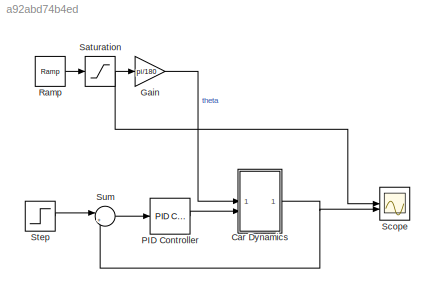
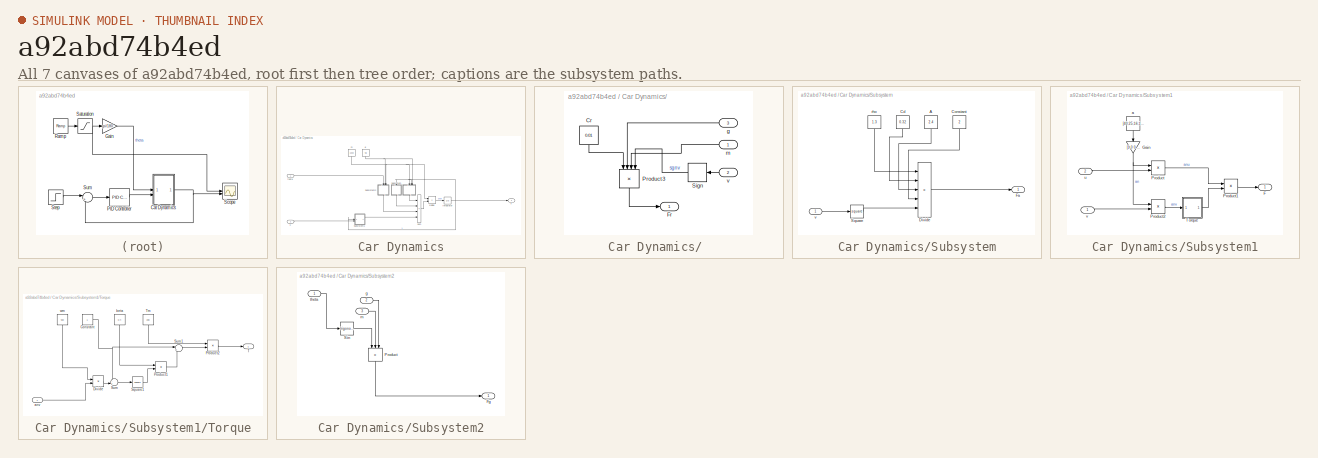
[diagram: thumbnail index - all 7 canvases of the model, root first then tree order]
MODEL slx_a92abd74b4ed
KIND model
CONFIG AbsTol = auto
CONFIG EnableMultiTasking = off
CONFIG FixedStep = auto
CONFIG MaxStep = auto
CONFIG MinStep = auto
CONFIG RelTol = 1e-3
CONFIG SampleTimeConstraint = Unconstrained
CONFIG SolverName = VariableStepAuto
CONFIG StartTime = 0.0
CONFIG StopTime = 10
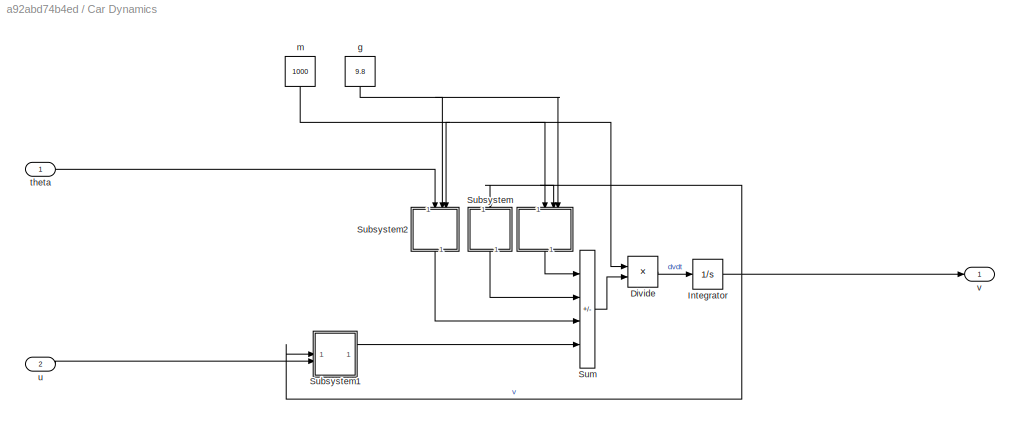
BLOCK [SubSystem] Car Dynamics
BLOCK [SubSystem] Car Dynamics/ 
  NameLocation = left
BLOCK [Constant] Car Dynamics/ /Cr
  NameLocation = left
  Value = 0.01
BLOCK [Outport] Car Dynamics/ /Fr
BLOCK [Product] Car Dynamics/ /Product3
  Inputs = 4
  NameLocation = left
BLOCK [Signum] Car Dynamics/ /Sign
  NameLocation = top
BLOCK [Inport] Car Dynamics/ /g
  NameLocation = top
  Port = 3
BLOCK [Inport] Car Dynamics/ /m
BLOCK [Inport] Car Dynamics/ /v
  Port = 2
BLOCK [Product] Car Dynamics/Divide
  Inputs = /*
BLOCK [Integrator] Car Dynamics/Integrator
BLOCK [SubSystem] Car Dynamics/Subsystem
  NameLocation = left
BLOCK [Constant] Car Dynamics/Subsystem/A
  NameLocation = left
  Value = 2.4
BLOCK [Constant] Car Dynamics/Subsystem/Cd
  NameLocation = left
  Value = 0.32
BLOCK [Constant] Car Dynamics/Subsystem/Constant
  NameLocation = left
  Value = 2
BLOCK [Product] Car Dynamics/Subsystem/Divide
  Inputs = ***/*
BLOCK [Outport] Car Dynamics/Subsystem/Fa
BLOCK [Math] Car Dynamics/Subsystem/Square
  Operator = square
BLOCK [Constant] Car Dynamics/Subsystem/rho
  NameLocation = left
  Value = 1.3
BLOCK [Inport] Car Dynamics/Subsystem/v
BLOCK [SubSystem] Car Dynamics/Subsystem1
BLOCK [Outport] Car Dynamics/Subsystem1/F
BLOCK [Gain] Car Dynamics/Subsystem1/Gain
  Gain = [1 0 0 0 0]
  Multiplication = Matrix(K*u)
  NameLocation = left
BLOCK [Product] Car Dynamics/Subsystem1/Product
BLOCK [Product] Car Dynamics/Subsystem1/Product1
BLOCK [Product] Car Dynamics/Subsystem1/Product2
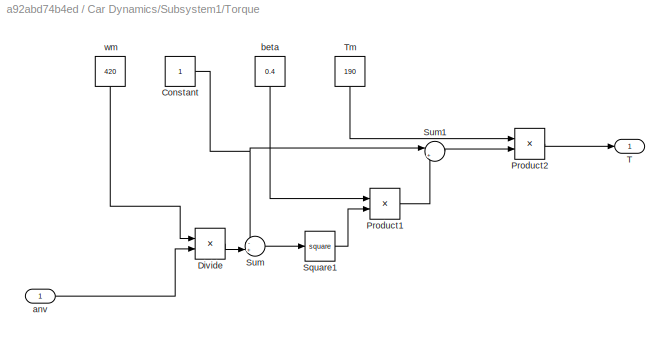
BLOCK [SubSystem] Car Dynamics/Subsystem1/Torque
BLOCK [Constant] Car Dynamics/Subsystem1/Torque/Constant
BLOCK [Product] Car Dynamics/Subsystem1/Torque/Divide
  Inputs = /*
BLOCK [Product] Car Dynamics/Subsystem1/Torque/Product1
BLOCK [Product] Car Dynamics/Subsystem1/Torque/Product2
BLOCK [Math] Car Dynamics/Subsystem1/Torque/Square1
  Operator = square
BLOCK [Sum] Car Dynamics/Subsystem1/Torque/Sum
  Inputs = -+|
BLOCK [Sum] Car Dynamics/Subsystem1/Torque/Sum1
  Inputs = |+-
BLOCK [Outport] Car Dynamics/Subsystem1/Torque/T
BLOCK [Constant] Car Dynamics/Subsystem1/Torque/Tm
  NameLocation = left
  Value = 190
BLOCK [Inport] Car Dynamics/Subsystem1/Torque/anv
BLOCK [Constant] Car Dynamics/Subsystem1/Torque/beta
  NameLocation = left
  Value = 0.4
BLOCK [Constant] Car Dynamics/Subsystem1/Torque/wm
  NameLocation = left
  Value = 420
BLOCK [Constant] Car Dynamics/Subsystem1/a
  NameLocation = left
  Value = [40;25;16;12;10]
BLOCK [Inport] Car Dynamics/Subsystem1/u
  Port = 2
BLOCK [Inport] Car Dynamics/Subsystem1/v
BLOCK [SubSystem] Car Dynamics/Subsystem2
  NameLocation = left
BLOCK [Outport] Car Dynamics/Subsystem2/Fg
BLOCK [Product] Car Dynamics/Subsystem2/Product
  Inputs = 3
  NameLocation = left
BLOCK [Trigonometry] Car Dynamics/Subsystem2/Sin
BLOCK [Inport] Car Dynamics/Subsystem2/g
  Port = 2
BLOCK [Inport] Car Dynamics/Subsystem2/m
  Port = 3
BLOCK [Inport] Car Dynamics/Subsystem2/theta
BLOCK [Sum] Car Dynamics/Sum
  IconShape = rectangular
  Inputs = ---+
BLOCK [Constant] Car Dynamics/g
  NameLocation = left
  Value = 9.8
BLOCK [Constant] Car Dynamics/m
  NameLocation = left
  Value = 1000
BLOCK [Inport] Car Dynamics/theta
BLOCK [Inport] Car Dynamics/u
  Port = 2
BLOCK [Outport] Car Dynamics/v
BLOCK [Gain] Gain
  Gain = pi/180
BLOCK [Reference] PID Controller  REF=slpidlib/PID Controller
  LibrarySourceBlock = simulink/Continuous/PID Controller
  SourceBlock = slpidlib/PID Controller
  SourceType = PID 1dof
BLOCK [Reference] Ramp  REF=simulink/Sources/Ramp
  SourceBlock = simulink/Sources/Ramp
  SourceType = Ramp
BLOCK [Saturate] Saturation
  UpperLimit = 4
BLOCK [Scope] Scope
  Floating = off
  NumInputPorts = 2
  ScopeSpecificationString = Simulink.scopes.TimeScopeBlockCfg('CurrentConfiguration', extmgr.ConfigurationSet(extmgr.Configuration('Core','General UI',true),extmgr.Configuration('Core','Source UI',true),extmgr.Configuration('Sources','WiredSimulink',true),extmgr.Configuration('Visuals','Time Domain',true,'SerializedDisplays',{struct('MinYLimReal','-3.32225','MaxYLimReal','29.90028','YLabelReal','','MinYLimMag','0.00000','Max...<+1429ch>
BLOCK [Step] Step
  After = 20
  SampleTime = 0
  Time = 0
BLOCK [Sum] Sum
  Inputs = |+-
LINE Car Dynamics/ /Cr:1 -> Car Dynamics/ /Product3:1
LINE Car Dynamics/ /Product3:1 -> Car Dynamics/ /Fr:1
LINE Car Dynamics/ /Sign:1 -> Car Dynamics/ /Product3:4
LINE Car Dynamics/ /g:1 -> Car Dynamics/ /Product3:2
LINE Car Dynamics/ /m:1 -> Car Dynamics/ /Product3:3
LINE Car Dynamics/ /v:1 -> Car Dynamics/ /Sign:1
LINE Car Dynamics/ :1 -> Car Dynamics/Sum:1
LINE Car Dynamics/Divide:1 -> Car Dynamics/Integrator:1
NET Car Dynamics/Integrator:1 -> Car Dynamics/ :2, Car Dynamics/Subsystem1:1, Car Dynamics/Subsystem:1, Car Dynamics/v:1
LINE Car Dynamics/Subsystem/A:1 -> Car Dynamics/Subsystem/Divide:3
LINE Car Dynamics/Subsystem/Cd:1 -> Car Dynamics/Subsystem/Divide:2
LINE Car Dynamics/Subsystem/Constant:1 -> Car Dynamics/Subsystem/Divide:4
LINE Car Dynamics/Subsystem/Divide:1 -> Car Dynamics/Subsystem/Fa:1
LINE Car Dynamics/Subsystem/Square:1 -> Car Dynamics/Subsystem/Divide:5
LINE Car Dynamics/Subsystem/rho:1 -> Car Dynamics/Subsystem/Divide:1
LINE Car Dynamics/Subsystem/v:1 -> Car Dynamics/Subsystem/Square:1
NET Car Dynamics/Subsystem1/Gain:1 -> Car Dynamics/Subsystem1/Product2:1, Car Dynamics/Subsystem1/Product:1
LINE Car Dynamics/Subsystem1/Product1:1 -> Car Dynamics/Subsystem1/F:1
LINE Car Dynamics/Subsystem1/Product2:1 -> Car Dynamics/Subsystem1/Torque:1
LINE Car Dynamics/Subsystem1/Product:1 -> Car Dynamics/Subsystem1/Product1:1
NET Car Dynamics/Subsystem1/Torque/Constant:1 -> Car Dynamics/Subsystem1/Torque/Sum1:1, Car Dynamics/Subsystem1/Torque/Sum:1
LINE Car Dynamics/Subsystem1/Torque/Divide:1 -> Car Dynamics/Subsystem1/Torque/Sum:2
LINE Car Dynamics/Subsystem1/Torque/Product1:1 -> Car Dynamics/Subsystem1/Torque/Sum1:2
LINE Car Dynamics/Subsystem1/Torque/Product2:1 -> Car Dynamics/Subsystem1/Torque/T:1
LINE Car Dynamics/Subsystem1/Torque/Square1:1 -> Car Dynamics/Subsystem1/Torque/Product1:2
LINE Car Dynamics/Subsystem1/Torque/Sum1:1 -> Car Dynamics/Subsystem1/Torque/Product2:2
LINE Car Dynamics/Subsystem1/Torque/Sum:1 -> Car Dynamics/Subsystem1/Torque/Square1:1
LINE Car Dynamics/Subsystem1/Torque/Tm:1 -> Car Dynamics/Subsystem1/Torque/Product2:1
LINE Car Dynamics/Subsystem1/Torque/anv:1 -> Car Dynamics/Subsystem1/Torque/Divide:2
LINE Car Dynamics/Subsystem1/Torque/beta:1 -> Car Dynamics/Subsystem1/Torque/Product1:1
LINE Car Dynamics/Subsystem1/Torque/wm:1 -> Car Dynamics/Subsystem1/Torque/Divide:1
LINE Car Dynamics/Subsystem1/Torque:1 -> Car Dynamics/Subsystem1/Product1:2
LINE Car Dynamics/Subsystem1/a:1 -> Car Dynamics/Subsystem1/Gain:1
LINE Car Dynamics/Subsystem1/u:1 -> Car Dynamics/Subsystem1/Product:2
LINE Car Dynamics/Subsystem1/v:1 -> Car Dynamics/Subsystem1/Product2:2
LINE Car Dynamics/Subsystem1:1 -> Car Dynamics/Sum:4
LINE Car Dynamics/Subsystem2/Product:1 -> Car Dynamics/Subsystem2/Fg:1
LINE Car Dynamics/Subsystem2/Sin:1 -> Car Dynamics/Subsystem2/Product:1
LINE Car Dynamics/Subsystem2/g:1 -> Car Dynamics/Subsystem2/Product:3
LINE Car Dynamics/Subsystem2/m:1 -> Car Dynamics/Subsystem2/Product:2
LINE Car Dynamics/Subsystem2/theta:1 -> Car Dynamics/Subsystem2/Sin:1
LINE Car Dynamics/Subsystem2:1 -> Car Dynamics/Sum:3
LINE Car Dynamics/Subsystem:1 -> Car Dynamics/Sum:2
LINE Car Dynamics/Sum:1 -> Car Dynamics/Divide:2
NET Car Dynamics/g:1 -> Car Dynamics/ :3, Car Dynamics/Subsystem2:2
NET Car Dynamics/m:1 -> Car Dynamics/ :1, Car Dynamics/Divide:1, Car Dynamics/Subsystem2:3
LINE Car Dynamics/theta:1 -> Car Dynamics/Subsystem2:1
LINE Car Dynamics/u:1 -> Car Dynamics/Subsystem1:2
NET Car Dynamics:1 -> Scope:2, Sum:2
LINE Gain:1 -> Car Dynamics:1
LINE PID Controller:1 -> Car Dynamics:2
LINE Ramp:1 -> Saturation:1
NET Saturation:1 -> Gain:1, Scope:1
LINE Step:1 -> Sum:1
LINE Sum:1 -> PID Controller:1
note: NET lines group one-source signal fan-out (src -> all destinations, sorted); 1:1 wires keep LINE
